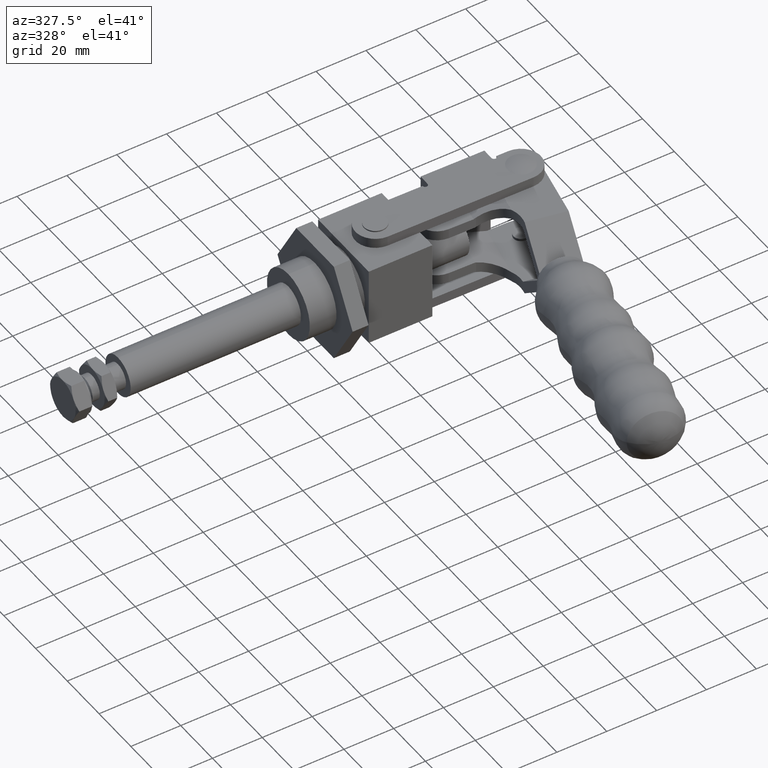
[diagram: clean part render]
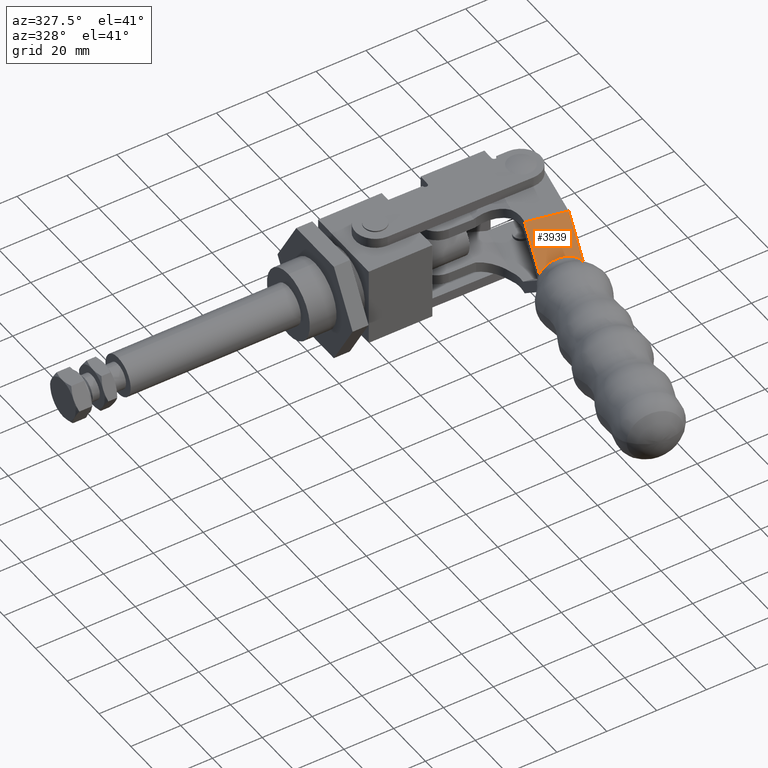
[diagram: same view with one face highlighted and labeled with its STEP entity id]
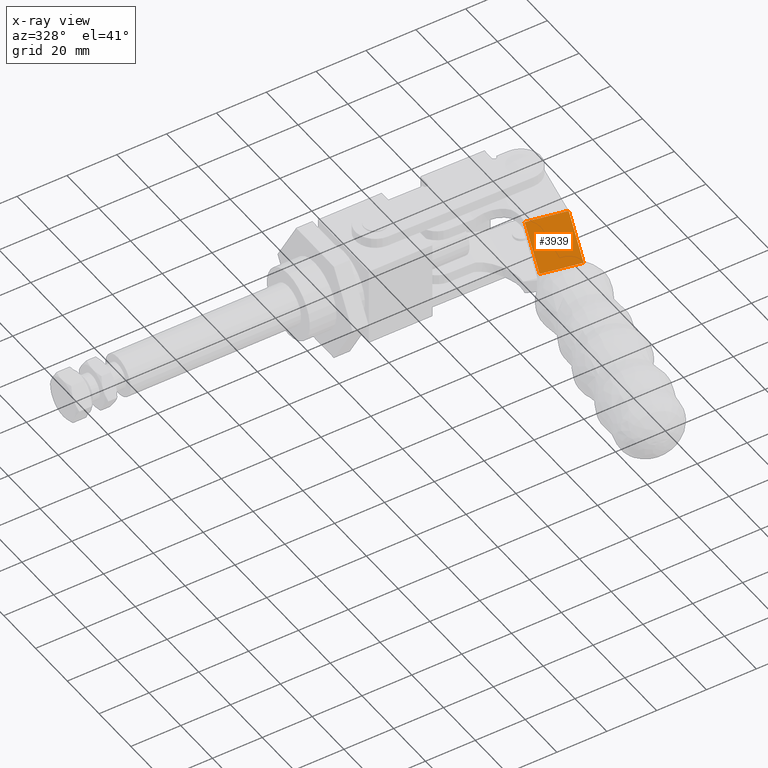
[diagram: x-ray of the same camera — body ghosted, the highlighted face saturated]
A machine part, auxiliary view. The second image highlights one B-rep face of the part: STEP entity #3939.
The next image is the same camera in x-ray: the body ghosted, the highlighted face saturated — about 0% of this face is hidden behind the body in this view.
In plain terms, the highlighted planar face has unit normal (0.1268, 0.6367, -0.7606).
Its self-contained STEP definition (entity closure, byte-faithful):
#149 = ORIENTED_EDGE ( 'NONE', *, *, #7384, .F. ) ;
#338 = ORIENTED_EDGE ( 'NONE', *, *, #9035, .F. ) ;
#443 = DIRECTION ( 'NONE',  ( 0.9807568437023571600, -0.1952332285523905300, 0.0000000000000000000 ) ) ;
#510 = LINE ( 'NONE', #3452, #8323 ) ;
#511 = LINE ( 'NONE', #7317, #4542 ) ;
#963 = CARTESIAN_POINT ( 'NONE',  ( 32.71371791643465300, -22.70912960952505000, 15.95000000000002200 ) ) ;
#1066 = CARTESIAN_POINT ( 'NONE',  ( 29.98045271670118700, -36.43972542135805500, 4.000000000000030200 ) ) ;
#1172 = VERTEX_POINT ( 'NONE', #8771 ) ;
#1443 = FACE_OUTER_BOUND ( 'NONE', #4663, .T. ) ;
#1795 = CARTESIAN_POINT ( 'NONE',  ( 48.40582741567234100, -25.83286126636331700, 15.95000000000000300 ) ) ;
#1838 = ORIENTED_EDGE ( 'NONE', *, *, #1999, .F. ) ;
#1999 = EDGE_CURVE ( 'NONE', #3068, #5630, #7454, .T. ) ;
#2460 = EDGE_CURVE ( 'NONE', #9402, #1172, #510, .T. ) ;
#2774 = DIRECTION ( 'NONE',  ( 0.1484938504804306200, 0.7459609267656818200, 0.6492240538584354000 ) ) ;
#3068 = VERTEX_POINT ( 'NONE', #963 ) ;
#3420 = VECTOR ( 'NONE', #5972, 1000.000000000000000 ) ;
#3452 = CARTESIAN_POINT ( 'NONE',  ( 37.82650746632001700, -38.00159124977717100, 4.000000000000017800 ) ) ;
#3939 = ADVANCED_FACE ( 'NONE', ( #1443 ), #4149, .F. ) ;
#4149 = PLANE ( 'NONE',  #6726 ) ;
#4182 = CARTESIAN_POINT ( 'NONE',  ( 46.76120231244866700, -39.78016596188951600, 4.000000000000017800 ) ) ;
#4542 = VECTOR ( 'NONE', #2774, 1000.000000000000000 ) ;
#4663 = EDGE_LOOP ( 'NONE', ( #1838, #338, #8610, #149 ) ) ;
#4847 = LINE ( 'NONE', #1795, #6623 ) ;
#5040 = DIRECTION ( 'NONE',  ( 0.0000000000000000000, 0.7667815562552546800, 0.6419081281513497900 ) ) ;
#5630 = VERTEX_POINT ( 'NONE', #5647 ) ;
#5647 = CARTESIAN_POINT ( 'NONE',  ( 48.40582741567234100, -25.83286126636331700, 15.95000000000000600 ) ) ;
#5972 = DIRECTION ( 'NONE',  ( 0.9807568437023569400, -0.1952332285523922200, -1.084202172485505600E-015 ) ) ;
#6330 = DIRECTION ( 'NONE',  ( -0.1484938504804315400, -0.7459609267656817100, -0.6492240538584354000 ) ) ;
#6623 = VECTOR ( 'NONE', #6330, 999.9999999999998900 ) ;
#6726 = AXIS2_PLACEMENT_3D ( 'NONE', #4182, #9475, #5040 ) ;
#7317 = CARTESIAN_POINT ( 'NONE',  ( 29.98045271670118300, -36.43972542135807700, 4.000000000000019500 ) ) ;
#7384 = EDGE_CURVE ( 'NONE', #5630, #1172, #4847, .T. ) ;
#7436 = CARTESIAN_POINT ( 'NONE',  ( 32.71371791643464600, -22.70912960952504300, 15.95000000000002100 ) ) ;
#7454 = LINE ( 'NONE', #7436, #3420 ) ;
#8323 = VECTOR ( 'NONE', #443, 1000.000000000000100 ) ;
#8610 = ORIENTED_EDGE ( 'NONE', *, *, #2460, .T. ) ;
#8771 = CARTESIAN_POINT ( 'NONE',  ( 45.67256221593886800, -39.56345707819630100, 4.000000000000023100 ) ) ;
#9035 = EDGE_CURVE ( 'NONE', #9402, #3068, #511, .T. ) ;
#9402 = VERTEX_POINT ( 'NONE', #1066 ) ;
#9475 = DIRECTION ( 'NONE',  ( 0.1267501080886536400, 0.6367309339178483000, -0.7605972179094657700 ) ) ;